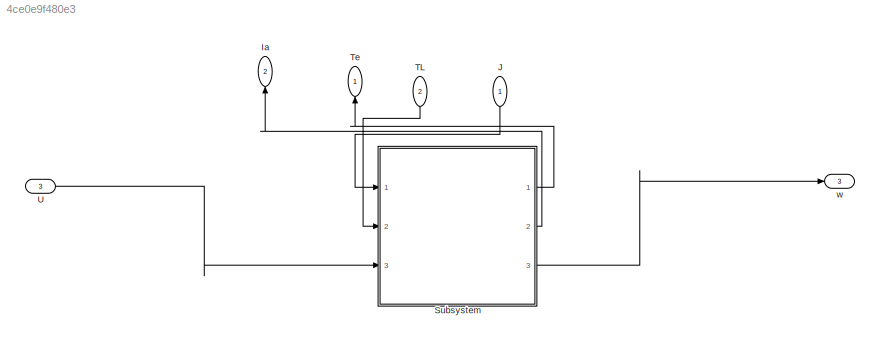
MODEL slx_4ce0e9f480e3
KIND model
CONFIG AbsTol = auto
CONFIG EnableMultiTasking = off
CONFIG FixedStep = auto
CONFIG MaxStep = auto
CONFIG MinStep = auto
CONFIG RelTol = 1e-3
CONFIG SampleTimeConstraint = Unconstrained
CONFIG Solver = VariableStepAuto
CONFIG SolverName = VariableStepAuto
CONFIG StartTime = 0.0
CONFIG StopTime = 10.0
BLOCK [Outport] Ia
  IconDisplay = Port number
  Port = 2
BLOCK [Inport] J
  IconDisplay = Port number
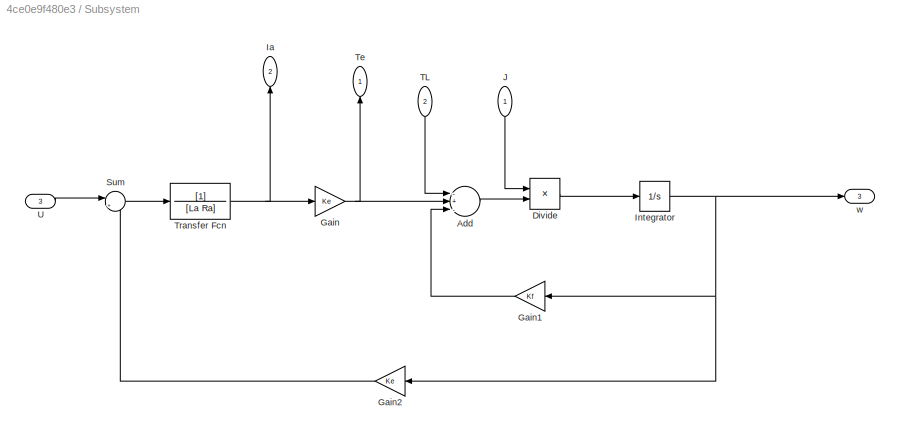
BLOCK [SubSystem] Subsystem
  Ports = [3, 3]
  RequestExecContextInheritance = off
BLOCK [Sum] Subsystem/Add
  InputSameDT = off
  Inputs = -+-
  OutDataTypeStr = Inherit: Inherit via internal rule
  Ports = [3, 1]
  SaturateOnIntegerOverflow = off
BLOCK [Product] Subsystem/Divide
  InputSameDT = off
  Inputs = */
  OutDataTypeStr = Inherit: Inherit via internal rule
  Ports = [2, 1]
  RndMeth = Floor
  SaturateOnIntegerOverflow = off
BLOCK [Gain] Subsystem/Gain
  Gain = Ke
  OutDataTypeStr = Inherit: Inherit via internal rule
  ParamDataTypeStr = Inherit: Inherit via internal rule
  SaturateOnIntegerOverflow = off
BLOCK [Gain] Subsystem/Gain1
  Gain = Kf
  OutDataTypeStr = Inherit: Inherit via internal rule
  ParamDataTypeStr = Inherit: Inherit via internal rule
  SaturateOnIntegerOverflow = off
BLOCK [Gain] Subsystem/Gain2
  Gain = Ke
  OutDataTypeStr = Inherit: Inherit via internal rule
  ParamDataTypeStr = Inherit: Inherit via internal rule
  SaturateOnIntegerOverflow = off
BLOCK [Outport] Subsystem/Ia
  IconDisplay = Port number
  Port = 2
BLOCK [Integrator] Subsystem/Integrator
  Ports = [1, 1]
BLOCK [Inport] Subsystem/J
  IconDisplay = Port number
BLOCK [Sum] Subsystem/Sum
  IconShape = round
  InputSameDT = off
  Inputs = |+-
  OutDataTypeStr = Inherit: Inherit via internal rule
  Ports = [2, 1]
  SaturateOnIntegerOverflow = off
BLOCK [Inport] Subsystem/TL
  IconDisplay = Port number
  Port = 2
BLOCK [Outport] Subsystem/Te
  IconDisplay = Port number
BLOCK [TransferFcn] Subsystem/Transfer Fcn
  Denominator = [La Ra]
BLOCK [Inport] Subsystem/U
  IconDisplay = Port number and signal name
  Port = 3
BLOCK [Outport] Subsystem/w
  IconDisplay = Port number
  Port = 3
BLOCK [Inport] TL
  IconDisplay = Port number
  Port = 2
BLOCK [Outport] Te
  IconDisplay = Port number
BLOCK [Inport] U
  IconDisplay = Port number and signal name
  Port = 3
BLOCK [Outport] w
  IconDisplay = Port number
  Port = 3
LINE J:1 -> Subsystem:1
LINE Subsystem/Add:1 -> Subsystem/Divide:2
LINE Subsystem/Divide:1 -> Subsystem/Integrator:1
LINE Subsystem/Gain1:1 -> Subsystem/Add:3
LINE Subsystem/Gain2:1 -> Subsystem/Sum:2
NET Subsystem/Gain:1 -> Subsystem/Add:2, Subsystem/Te:1
NET Subsystem/Integrator:1 -> Subsystem/Gain1:1, Subsystem/Gain2:1, Subsystem/w:1
LINE Subsystem/J:1 -> Subsystem/Divide:1
LINE Subsystem/Sum:1 -> Subsystem/Transfer Fcn:1
LINE Subsystem/TL:1 -> Subsystem/Add:1
NET Subsystem/Transfer Fcn:1 -> Subsystem/Gain:1, Subsystem/Ia:1
LINE Subsystem/U:1 -> Subsystem/Sum:1
LINE Subsystem:1 -> Te:1
LINE Subsystem:2 -> Ia:1
LINE Subsystem:3 -> w:1
LINE TL:1 -> Subsystem:2
LINE U:1 -> Subsystem:3
note: NET lines group one-source signal fan-out (src -> all destinations, sorted); 1:1 wires keep LINE
